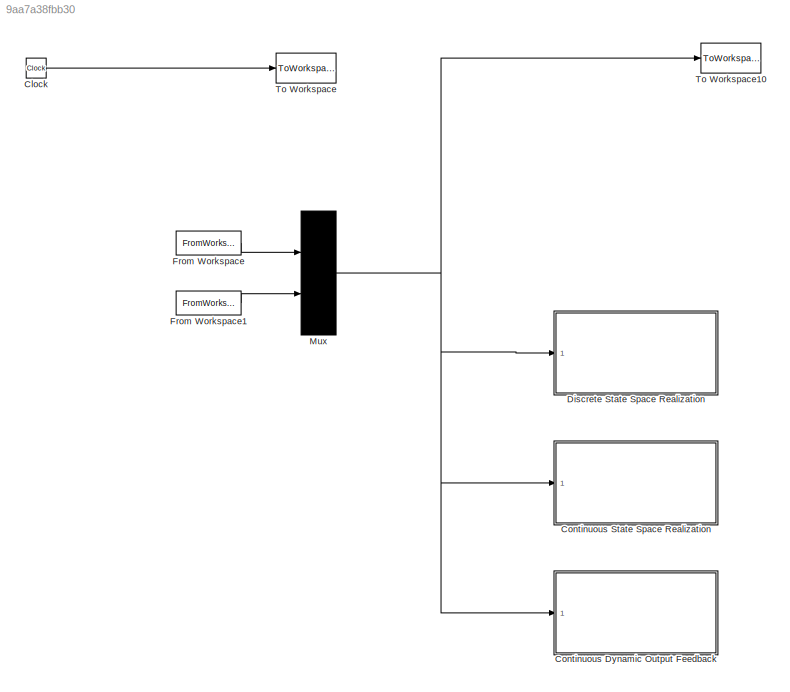
MODEL slx_9aa7a38fbb30
KIND model
CONFIG AbsTol = auto
CONFIG EnableMultiTasking = on
CONFIG FixedStep = T_s
CONFIG MaxStep = Auto
CONFIG MinStep = Auto
CONFIG RelTol = 1e-3
CONFIG SampleTimeConstraint = Unconstrained
CONFIG Solver = ode8
CONFIG SolverName = ode8
CONFIG StartTime = 0.0
CONFIG StopTime = 40
BLOCK [Clock] Clock
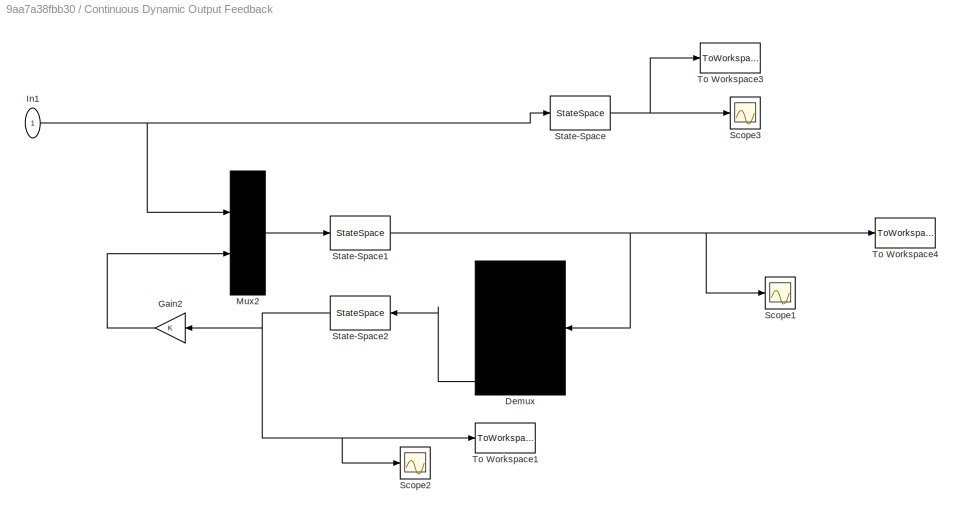
BLOCK [SubSystem] Continuous Dynamic Output Feedback
  Ports = [1]
  RequestExecContextInheritance = off
BLOCK [Demux] Continuous Dynamic Output Feedback/Demux
  DisplayOption = bar
  Outputs = 9
  Ports = [1, 9]
BLOCK [Gain] Continuous Dynamic Output Feedback/Gain2
  OutDataTypeStr = Inherit: Inherit via internal rule
  ParamDataTypeStr = Inherit: Inherit via internal rule
  SaturateOnIntegerOverflow = off
BLOCK [Inport] Continuous Dynamic Output Feedback/In1
  IconDisplay = Port number
BLOCK [Mux] Continuous Dynamic Output Feedback/Mux2
  DisplayOption = bar
  Inputs = 2
  Ports = [2, 1]
BLOCK [Scope] Continuous Dynamic Output Feedback/Scope1
  Floating = off
  NumInputPorts = 1
  Ports = [1]
  ScopeSpecificationString = Simulink.scopes.TimeScopeBlockCfg('CurrentConfiguration', extmgr.ConfigurationSet(extmgr.Configuration('Core','General UI',true),extmgr.Configuration('Core','Source UI',true),extmgr.Configuration('Sources','WiredSimulink',true,'DataLoggingVariableName','ScopeData1','DataLoggingSaveFormat','StructureWithTime','DataLoggingDecimation','1','DataLoggingDecimateData',true),extmgr.Configuration('Visuals'...<+1821ch>
BLOCK [Scope] Continuous Dynamic Output Feedback/Scope2
  Floating = off
  NumInputPorts = 1
  Ports = [1]
  ScopeSpecificationString = Simulink.scopes.TimeScopeBlockCfg('CurrentConfiguration', extmgr.ConfigurationSet(extmgr.Configuration('Core','General UI',true),extmgr.Configuration('Core','Source UI',true),extmgr.Configuration('Sources','WiredSimulink',true,'DataLoggingVariableName','ScopeData2','DataLoggingSaveFormat','StructureWithTime','DataLoggingDecimation','1','DataLoggingDecimateData',true),extmgr.Configuration('Visuals'...<+1698ch>
BLOCK [Scope] Continuous Dynamic Output Feedback/Scope3
  Floating = off
  NumInputPorts = 1
  Ports = [1]
  ScopeSpecificationString = Simulink.scopes.TimeScopeBlockCfg('CurrentConfiguration', extmgr.ConfigurationSet(extmgr.Configuration('Core','General UI',true),extmgr.Configuration('Core','Source UI',true),extmgr.Configuration('Sources','WiredSimulink',true,'DataLoggingVariableName','ScopeData3','DataLoggingSaveFormat','StructureWithTime','DataLoggingDecimation','1','DataLoggingDecimateData',true),extmgr.Configuration('Visuals'...<+1963ch>
BLOCK [StateSpace] Continuous Dynamic Output Feedback/State-Space
  A = Ac
  B = Bc1
  C = [Cc1;Ac(7:12,:)]
  D = [zeros(size(Cc1,1),size(Bc1,2));Bc1(7:12,:)]
  InitialCondition = 0
  Ports = [1, 1]
BLOCK [StateSpace] Continuous Dynamic Output Feedback/State-Space1
  A = Ac
  B = [Bc1 Bc2]
  C = [Cdc1;Ac(7:12,:);Cdc2]
  D = [Ddc11 Ddc12;Bc1(7:12,:) Bc2(7:12,:);Ddc21 Ddc22]
  InitialCondition = 0
  Ports = [1, 1]
BLOCK [StateSpace] Continuous Dynamic Output Feedback/State-Space2
  A = Ak
  B = Bk
  C = Ck
  D = Dk
  InitialCondition = 0
  Ports = [1, 1]
BLOCK [ToWorkspace] Continuous Dynamic Output Feedback/To Workspace1
  MaxDataPoints = inf
  Ports = [1]
  SampleTime = -1
  VariableName = udc
BLOCK [ToWorkspace] Continuous Dynamic Output Feedback/To Workspace3
  MaxDataPoints = inf
  Ports = [1]
  SampleTime = -1
  SaveFormat = Structure
  VariableName = x_uncdc
BLOCK [ToWorkspace] Continuous Dynamic Output Feedback/To Workspace4
  MaxDataPoints = inf
  Ports = [1]
  SampleTime = -1
  SaveFormat = Structure
  VariableName = x_cdc
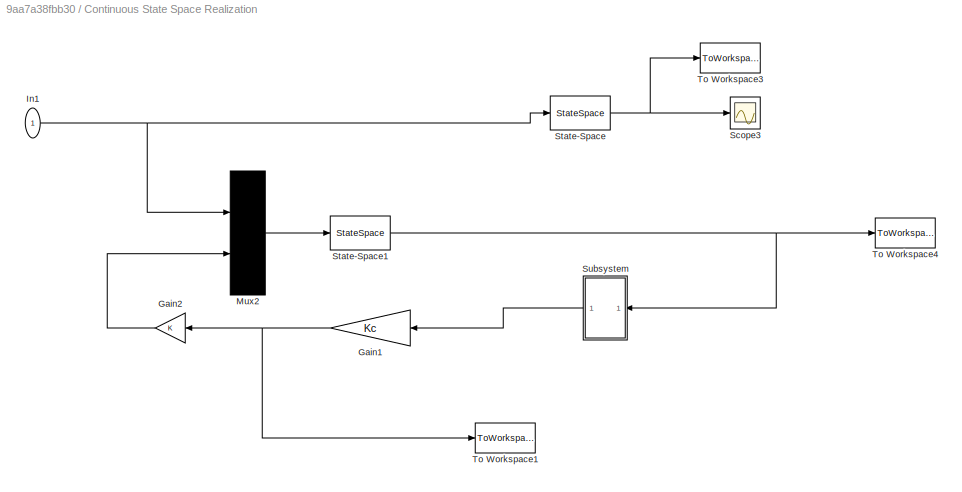
BLOCK [SubSystem] Continuous State Space Realization
  Ports = [1]
  RequestExecContextInheritance = off
BLOCK [Gain] Continuous State Space Realization/Gain1
  Gain = Kc
  Multiplication = Matrix(K*u) (u vector)
  OutDataTypeStr = Inherit: Inherit via internal rule
  ParamDataTypeStr = Inherit: Inherit via internal rule
  SaturateOnIntegerOverflow = off
BLOCK [Gain] Continuous State Space Realization/Gain2
  OutDataTypeStr = Inherit: Inherit via internal rule
  ParamDataTypeStr = Inherit: Inherit via internal rule
  SaturateOnIntegerOverflow = off
BLOCK [Inport] Continuous State Space Realization/In1
  IconDisplay = Port number
BLOCK [Mux] Continuous State Space Realization/Mux2
  DisplayOption = bar
  Inputs = 2
  Ports = [2, 1]
BLOCK [Scope] Continuous State Space Realization/Scope3
  Floating = off
  NumInputPorts = 1
  Ports = [1]
  ScopeSpecificationString = Simulink.scopes.TimeScopeBlockCfg('CurrentConfiguration', extmgr.ConfigurationSet(extmgr.Configuration('Core','General UI',true),extmgr.Configuration('Core','Source UI',true),extmgr.Configuration('Sources','WiredSimulink',true,'DataLoggingVariableName','ScopeData3','DataLoggingSaveFormat','StructureWithTime','DataLoggingDecimation','1','DataLoggingDecimateData',true),extmgr.Configuration('Visuals'...<+877ch>
BLOCK [StateSpace] Continuous State Space Realization/State-Space
  A = Ac
  B = Bc1
  C = [Cc1;Ac(7:12,:)]
  D = [zeros(size(Cc1,1),size(Bc1,2));Bc1(7:12,:)]
  InitialCondition = 0
  Ports = [1, 1]
BLOCK [StateSpace] Continuous State Space Realization/State-Space1
  A = Ac
  B = [Bc1 Bc2]
  C = [Cc1;Ac(7:12,:)]
  D = [zeros(size(Cc1,1),size([Bc1 Bc2],2));[Bc1(7:12,:) Bc2(7:12,:)]]
  InitialCondition = 0
  Ports = [1, 1]
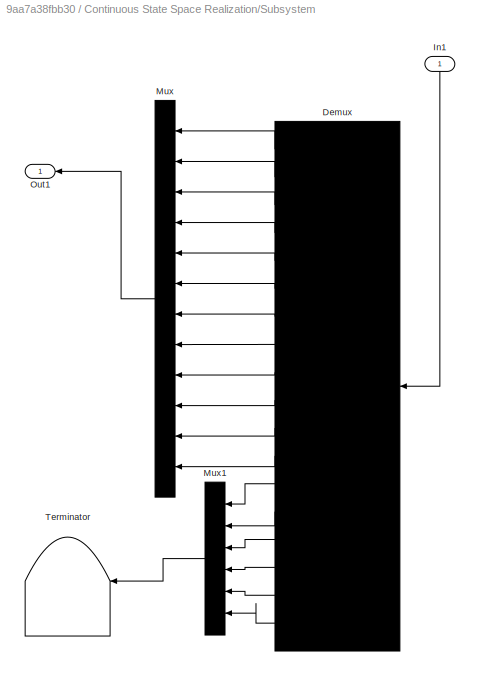
BLOCK [SubSystem] Continuous State Space Realization/Subsystem
  Ports = [1, 1]
  RequestExecContextInheritance = off
BLOCK [Demux] Continuous State Space Realization/Subsystem/Demux
  DisplayOption = bar
  Outputs = 18
  Ports = [1, 18]
BLOCK [Inport] Continuous State Space Realization/Subsystem/In1
  IconDisplay = Port number
BLOCK [Mux] Continuous State Space Realization/Subsystem/Mux
  DisplayOption = bar
  Inputs = 12
  Ports = [12, 1]
BLOCK [Mux] Continuous State Space Realization/Subsystem/Mux1
  DisplayOption = bar
  Inputs = 6
  Ports = [6, 1]
BLOCK [Outport] Continuous State Space Realization/Subsystem/Out1
  IconDisplay = Port number
BLOCK [Terminator] Continuous State Space Realization/Subsystem/Terminator
BLOCK [ToWorkspace] Continuous State Space Realization/To Workspace1
  MaxDataPoints = inf
  Ports = [1]
  SampleTime = -1
  VariableName = uc
BLOCK [ToWorkspace] Continuous State Space Realization/To Workspace3
  MaxDataPoints = inf
  Ports = [1]
  SampleTime = -1
  SaveFormat = Structure
  VariableName = x_uncc
BLOCK [ToWorkspace] Continuous State Space Realization/To Workspace4
  MaxDataPoints = inf
  Ports = [1]
  SampleTime = -1
  SaveFormat = Structure
  VariableName = x_cc
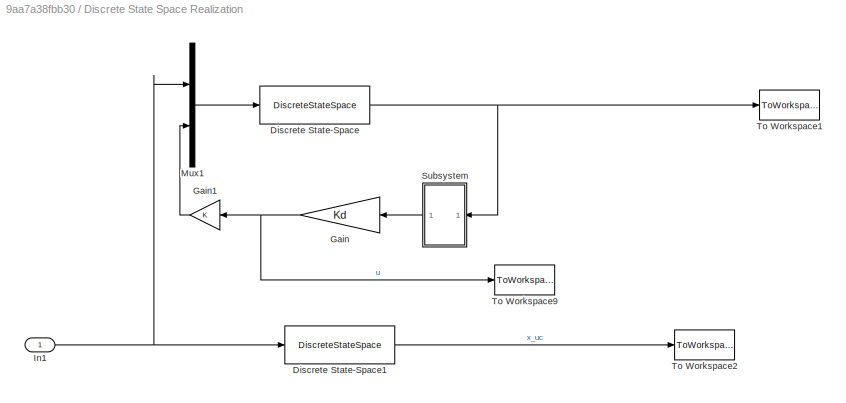
BLOCK [SubSystem] Discrete State Space Realization
  Ports = [1]
  RequestExecContextInheritance = off
BLOCK [DiscreteStateSpace] Discrete State Space Realization/Discrete State-Space
  A = A
  B = [E1 B1]
  C = [C; A(7:12,:)]
  D = [zeros(size(C,1),size([E1 B1],2));[E1(7:12,:) B1(7:12,:)]]
  SampleTime = T_s
BLOCK [DiscreteStateSpace] Discrete State Space Realization/Discrete State-Space1
  A = A
  B = E1
  C = [C;A(7:12,:)]
  D = [zeros(size(C,1),size(E1,2));E1(7:12,:)]
  SampleTime = T_s
BLOCK [Gain] Discrete State Space Realization/Gain
  Gain = Kd
  Multiplication = Matrix(K*u) (u vector)
  OutDataTypeStr = Inherit: Inherit via internal rule
  ParamDataTypeStr = Inherit: Inherit via internal rule
  SaturateOnIntegerOverflow = off
BLOCK [Gain] Discrete State Space Realization/Gain1
  OutDataTypeStr = Inherit: Inherit via internal rule
  ParamDataTypeStr = Inherit: Inherit via internal rule
  SaturateOnIntegerOverflow = off
BLOCK [Inport] Discrete State Space Realization/In1
  IconDisplay = Port number
BLOCK [Mux] Discrete State Space Realization/Mux1
  DisplayOption = bar
  Inputs = 2
  Ports = [2, 1]
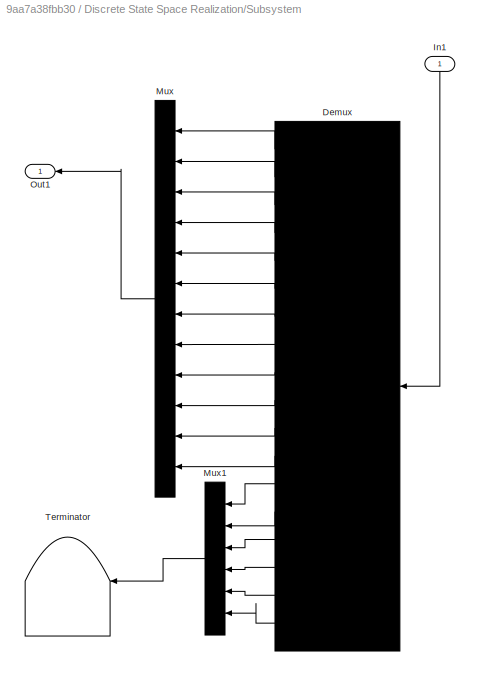
BLOCK [SubSystem] Discrete State Space Realization/Subsystem
  Ports = [1, 1]
  RequestExecContextInheritance = off
BLOCK [Demux] Discrete State Space Realization/Subsystem/Demux
  DisplayOption = bar
  Outputs = 18
  Ports = [1, 18]
BLOCK [Inport] Discrete State Space Realization/Subsystem/In1
  IconDisplay = Port number
BLOCK [Mux] Discrete State Space Realization/Subsystem/Mux
  DisplayOption = bar
  Inputs = 12
  Ports = [12, 1]
BLOCK [Mux] Discrete State Space Realization/Subsystem/Mux1
  DisplayOption = bar
  Inputs = 6
  Ports = [6, 1]
BLOCK [Outport] Discrete State Space Realization/Subsystem/Out1
  IconDisplay = Port number
BLOCK [Terminator] Discrete State Space Realization/Subsystem/Terminator
BLOCK [ToWorkspace] Discrete State Space Realization/To Workspace1
  MaxDataPoints = inf
  Ports = [1]
  SampleTime = -1
  SaveFormat = Structure
  VariableName = x_cd
BLOCK [ToWorkspace] Discrete State Space Realization/To Workspace2
  MaxDataPoints = inf
  Ports = [1]
  SampleTime = -1
  SaveFormat = Structure
  VariableName = x_unc
BLOCK [ToWorkspace] Discrete State Space Realization/To Workspace9
  MaxDataPoints = inf
  Ports = [1]
  SampleTime = -1
  VariableName = ud
BLOCK [FromWorkspace] From Workspace
  VariableName = Xs
  ZeroCross = on
BLOCK [FromWorkspace] From Workspace1
  VariableName = Vs
  ZeroCross = on
BLOCK [Mux] Mux
  DisplayOption = bar
  Inputs = 2
  Ports = [2, 1]
BLOCK [ToWorkspace] To Workspace
  MaxDataPoints = inf
  Ports = [1]
  SampleTime = -1
  VariableName = t
BLOCK [ToWorkspace] To Workspace10
  MaxDataPoints = inf
  Ports = [1]
  SampleTime = -1
  VariableName = x_r
LINE Clock:1 -> To Workspace:1
LINE Continuous Dynamic Output Feedback/Demux:9 -> Continuous Dynamic Output Feedback/State-Space2:1
LINE Continuous Dynamic Output Feedback/Gain2:1 -> Continuous Dynamic Output Feedback/Mux2:2
NET Continuous Dynamic Output Feedback/In1:1 -> Continuous Dynamic Output Feedback/Mux2:1, Continuous Dynamic Output Feedback/State-Space:1
LINE Continuous Dynamic Output Feedback/Mux2:1 -> Continuous Dynamic Output Feedback/State-Space1:1
NET Continuous Dynamic Output Feedback/State-Space1:1 -> Continuous Dynamic Output Feedback/Demux:1, Continuous Dynamic Output Feedback/Scope1:1, Continuous Dynamic Output Feedback/To Workspace4:1
NET Continuous Dynamic Output Feedback/State-Space2:1 -> Continuous Dynamic Output Feedback/Gain2:1, Continuous Dynamic Output Feedback/Scope2:1, Continuous Dynamic Output Feedback/To Workspace1:1
NET Continuous Dynamic Output Feedback/State-Space:1 -> Continuous Dynamic Output Feedback/Scope3:1, Continuous Dynamic Output Feedback/To Workspace3:1
NET Continuous State Space Realization/Gain1:1 -> Continuous State Space Realization/Gain2:1, Continuous State Space Realization/To Workspace1:1
LINE Continuous State Space Realization/Gain2:1 -> Continuous State Space Realization/Mux2:2
NET Continuous State Space Realization/In1:1 -> Continuous State Space Realization/Mux2:1, Continuous State Space Realization/State-Space:1
LINE Continuous State Space Realization/Mux2:1 -> Continuous State Space Realization/State-Space1:1
NET Continuous State Space Realization/State-Space1:1 -> Continuous State Space Realization/Subsystem:1, Continuous State Space Realization/To Workspace4:1
NET Continuous State Space Realization/State-Space:1 -> Continuous State Space Realization/Scope3:1, Continuous State Space Realization/To Workspace3:1
LINE Continuous State Space Realization/Subsystem/Demux:1 -> Continuous State Space Realization/Subsystem/Mux:1
LINE Continuous State Space Realization/Subsystem/Demux:10 -> Continuous State Space Realization/Subsystem/Mux:10
LINE Continuous State Space Realization/Subsystem/Demux:11 -> Continuous State Space Realization/Subsystem/Mux:11
LINE Continuous State Space Realization/Subsystem/Demux:12 -> Continuous State Space Realization/Subsystem/Mux:12
LINE Continuous State Space Realization/Subsystem/Demux:13 -> Continuous State Space Realization/Subsystem/Mux1:1
LINE Continuous State Space Realization/Subsystem/Demux:14 -> Continuous State Space Realization/Subsystem/Mux1:2
LINE Continuous State Space Realization/Subsystem/Demux:15 -> Continuous State Space Realization/Subsystem/Mux1:3
LINE Continuous State Space Realization/Subsystem/Demux:16 -> Continuous State Space Realization/Subsystem/Mux1:4
LINE Continuous State Space Realization/Subsystem/Demux:17 -> Continuous State Space Realization/Subsystem/Mux1:5
LINE Continuous State Space Realization/Subsystem/Demux:18 -> Continuous State Space Realization/Subsystem/Mux1:6
LINE Continuous State Space Realization/Subsystem/Demux:2 -> Continuous State Space Realization/Subsystem/Mux:2
LINE Continuous State Space Realization/Subsystem/Demux:3 -> Continuous State Space Realization/Subsystem/Mux:3
LINE Continuous State Space Realization/Subsystem/Demux:4 -> Continuous State Space Realization/Subsystem/Mux:4
LINE Continuous State Space Realization/Subsystem/Demux:5 -> Continuous State Space Realization/Subsystem/Mux:5
LINE Continuous State Space Realization/Subsystem/Demux:6 -> Continuous State Space Realization/Subsystem/Mux:6
LINE Continuous State Space Realization/Subsystem/Demux:7 -> Continuous State Space Realization/Subsystem/Mux:7
LINE Continuous State Space Realization/Subsystem/Demux:8 -> Continuous State Space Realization/Subsystem/Mux:8
LINE Continuous State Space Realization/Subsystem/Demux:9 -> Continuous State Space Realization/Subsystem/Mux:9
LINE Continuous State Space Realization/Subsystem/In1:1 -> Continuous State Space Realization/Subsystem/Demux:1
LINE Continuous State Space Realization/Subsystem/Mux1:1 -> Continuous State Space Realization/Subsystem/Terminator:1
LINE Continuous State Space Realization/Subsystem/Mux:1 -> Continuous State Space Realization/Subsystem/Out1:1
LINE Continuous State Space Realization/Subsystem:1 -> Continuous State Space Realization/Gain1:1
LINE Discrete State Space Realization/Discrete State-Space1:1 -> Discrete State Space Realization/To Workspace2:1
NET Discrete State Space Realization/Discrete State-Space:1 -> Discrete State Space Realization/Subsystem:1, Discrete State Space Realization/To Workspace1:1
LINE Discrete State Space Realization/Gain1:1 -> Discrete State Space Realization/Mux1:2
NET Discrete State Space Realization/Gain:1 -> Discrete State Space Realization/Gain1:1, Discrete State Space Realization/To Workspace9:1
NET Discrete State Space Realization/In1:1 -> Discrete State Space Realization/Discrete State-Space1:1, Discrete State Space Realization/Mux1:1
LINE Discrete State Space Realization/Mux1:1 -> Discrete State Space Realization/Discrete State-Space:1
LINE Discrete State Space Realization/Subsystem/Demux:1 -> Discrete State Space Realization/Subsystem/Mux:1
LINE Discrete State Space Realization/Subsystem/Demux:10 -> Discrete State Space Realization/Subsystem/Mux:10
LINE Discrete State Space Realization/Subsystem/Demux:11 -> Discrete State Space Realization/Subsystem/Mux:11
LINE Discrete State Space Realization/Subsystem/Demux:12 -> Discrete State Space Realization/Subsystem/Mux:12
LINE Discrete State Space Realization/Subsystem/Demux:13 -> Discrete State Space Realization/Subsystem/Mux1:1
LINE Discrete State Space Realization/Subsystem/Demux:14 -> Discrete State Space Realization/Subsystem/Mux1:2
LINE Discrete State Space Realization/Subsystem/Demux:15 -> Discrete State Space Realization/Subsystem/Mux1:3
LINE Discrete State Space Realization/Subsystem/Demux:16 -> Discrete State Space Realization/Subsystem/Mux1:4
LINE Discrete State Space Realization/Subsystem/Demux:17 -> Discrete State Space Realization/Subsystem/Mux1:5
LINE Discrete State Space Realization/Subsystem/Demux:18 -> Discrete State Space Realization/Subsystem/Mux1:6
LINE Discrete State Space Realization/Subsystem/Demux:2 -> Discrete State Space Realization/Subsystem/Mux:2
LINE Discrete State Space Realization/Subsystem/Demux:3 -> Discrete State Space Realization/Subsystem/Mux:3
LINE Discrete State Space Realization/Subsystem/Demux:4 -> Discrete State Space Realization/Subsystem/Mux:4
LINE Discrete State Space Realization/Subsystem/Demux:5 -> Discrete State Space Realization/Subsystem/Mux:5
LINE Discrete State Space Realization/Subsystem/Demux:6 -> Discrete State Space Realization/Subsystem/Mux:6
LINE Discrete State Space Realization/Subsystem/Demux:7 -> Discrete State Space Realization/Subsystem/Mux:7
LINE Discrete State Space Realization/Subsystem/Demux:8 -> Discrete State Space Realization/Subsystem/Mux:8
LINE Discrete State Space Realization/Subsystem/Demux:9 -> Discrete State Space Realization/Subsystem/Mux:9
LINE Discrete State Space Realization/Subsystem/In1:1 -> Discrete State Space Realization/Subsystem/Demux:1
LINE Discrete State Space Realization/Subsystem/Mux1:1 -> Discrete State Space Realization/Subsystem/Terminator:1
LINE Discrete State Space Realization/Subsystem/Mux:1 -> Discrete State Space Realization/Subsystem/Out1:1
LINE Discrete State Space Realization/Subsystem:1 -> Discrete State Space Realization/Gain:1
LINE From Workspace1:1 -> Mux:2
LINE From Workspace:1 -> Mux:1
NET Mux:1 -> Continuous Dynamic Output Feedback:1, Continuous State Space Realization:1, Discrete State Space Realization:1, To Workspace10:1
note: NET lines group one-source signal fan-out (src -> all destinations, sorted); 1:1 wires keep LINE
